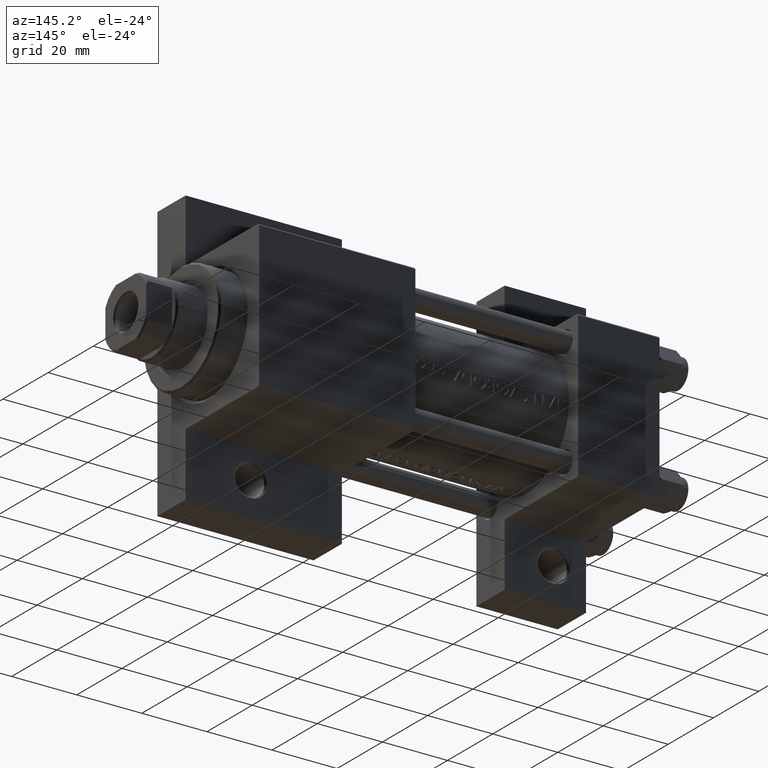
[diagram: clean part render]
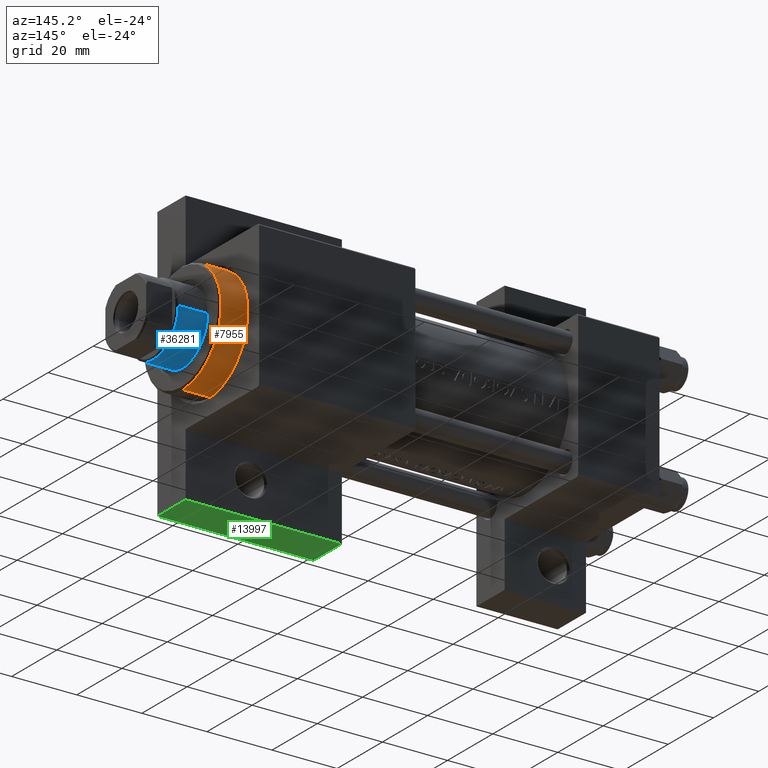
[diagram: same view with three faces highlighted in distinct colors, each labeled with its STEP entity id]
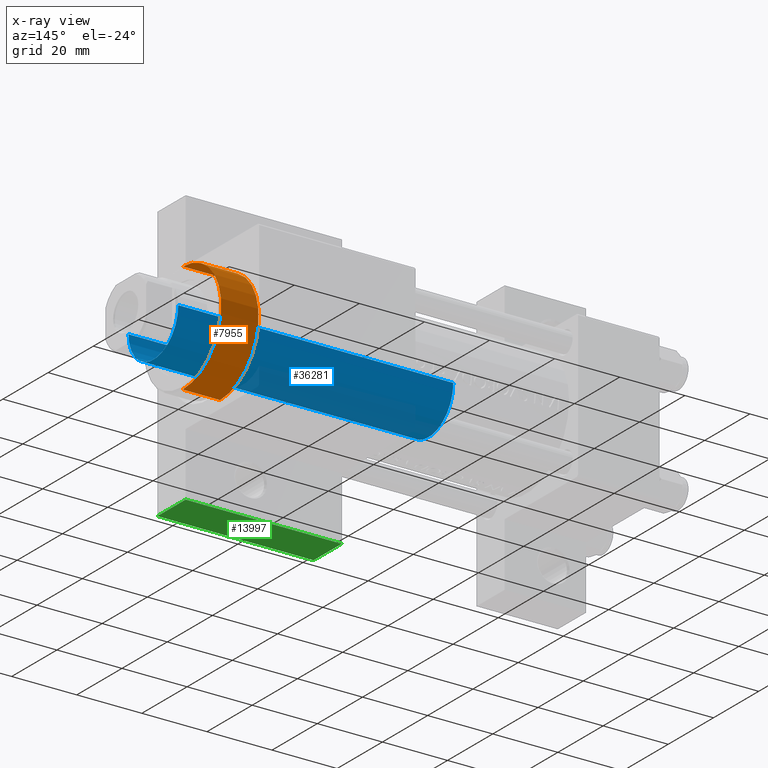
[diagram: x-ray of the same camera — body ghosted, the three highlighted faces saturated]
A machine part, auxiliary view with three faces highlighted in distinct colors.
The next image is the same camera in x-ray (body ghosted, the three faces saturated) — at least one of them is partly hidden behind the body in this view.
Their STEP definitions:

[orange] entity #7955 — the highlighted cylindrical surface (partial cylindrical patch) has radius 17 mm, axis along (-1, -0, 0).
#794 = VECTOR ( 'NONE', #15825, 1000.000000000000000 ) ;
#1245 = ORIENTED_EDGE ( 'NONE', *, *, #9438, .F. ) ;
#1722 = CIRCLE ( 'NONE', #46285, 17.00000000000000000 ) ;
#2302 = VERTEX_POINT ( 'NONE', #45322 ) ;
#2951 = DIRECTION ( 'NONE',  ( 0.000000000000000000, 0.000000000000000000, 1.000000000000000000 ) ) ;
#4401 = ORIENTED_EDGE ( 'NONE', *, *, #6336, .T. ) ;
#4854 = AXIS2_PLACEMENT_3D ( 'NONE', #19481, #41344, #18996 ) ;
#6336 = EDGE_CURVE ( 'NONE', #18333, #29306, #41307, .T. ) ;
#7071 = VECTOR ( 'NONE', #15433, 1000.000000000000000 ) ;
#7829 = VERTEX_POINT ( 'NONE', #43497 ) ;
#7955 = ADVANCED_FACE ( 'NONE', ( #17070 ), #43016, .T. ) ;
#8691 = LINE ( 'NONE', #19998, #7071 ) ;
#9438 = EDGE_CURVE ( 'NONE', #7829, #2302, #8691, .T. ) ;
#13327 = CIRCLE ( 'NONE', #4854, 17.00000000000000000 ) ;
#13552 = CARTESIAN_POINT ( 'NONE',  ( 0.000000000000000000, 0.000000000000000000, 28.69999999999999929 ) ) ;
#15433 = DIRECTION ( 'NONE',  ( -0.000000000000000000, -0.000000000000000000, -1.000000000000000000 ) ) ;
#15825 = DIRECTION ( 'NONE',  ( -0.000000000000000000, -0.000000000000000000, -1.000000000000000000 ) ) ;
#17070 = FACE_OUTER_BOUND ( 'NONE', #40054, .T. ) ;
#17399 = DIRECTION ( 'NONE',  ( 1.000000000000000000, 0.000000000000000000, 0.000000000000000000 ) ) ;
#17530 = DIRECTION ( 'NONE',  ( -0.000000000000000000, -0.000000000000000000, -1.000000000000000000 ) ) ;
#18265 = ORIENTED_EDGE ( 'NONE', *, *, #44317, .T. ) ;
#18333 = VERTEX_POINT ( 'NONE', #44437 ) ;
#18996 = DIRECTION ( 'NONE',  ( 1.000000000000000000, 0.000000000000000000, 0.000000000000000000 ) ) ;
#19481 = CARTESIAN_POINT ( 'NONE',  ( 0.000000000000000000, 0.000000000000000000, 40.19999999999999574 ) ) ;
#19998 = CARTESIAN_POINT ( 'NONE',  ( -17.00000000000000000, 0.000000000000000000, 40.70000000000000284 ) ) ;
#22798 = CARTESIAN_POINT ( 'NONE',  ( 17.00000000000000000, 2.081899558550500280E-15, 40.70000000000000284 ) ) ;
#25468 = DIRECTION ( 'NONE',  ( -1.000000000000000000, 0.000000000000000000, 0.000000000000000000 ) ) ;
#29306 = VERTEX_POINT ( 'NONE', #41816 ) ;
#30258 = EDGE_CURVE ( 'NONE', #7829, #18333, #13327, .T. ) ;
#33560 = ORIENTED_EDGE ( 'NONE', *, *, #30258, .T. ) ;
#40054 = EDGE_LOOP ( 'NONE', ( #33560, #4401, #18265, #1245 ) ) ;
#41307 = LINE ( 'NONE', #22798, #794 ) ;
#41344 = DIRECTION ( 'NONE',  ( 0.000000000000000000, 0.000000000000000000, -1.000000000000000000 ) ) ;
#41816 = CARTESIAN_POINT ( 'NONE',  ( 17.00000000000000000, 2.081899558550500280E-15, 28.69999999999999929 ) ) ;
#43016 = CYLINDRICAL_SURFACE ( 'NONE', #46946, 17.00000000000000000 ) ;
#43497 = CARTESIAN_POINT ( 'NONE',  ( -17.00000000000000000, 0.000000000000000000, 40.19999999999999574 ) ) ;
#44317 = EDGE_CURVE ( 'NONE', #29306, #2302, #1722, .T. ) ;
#44437 = CARTESIAN_POINT ( 'NONE',  ( 17.00000000000000000, 2.081899558550500280E-15, 40.19999999999999574 ) ) ;
#45322 = CARTESIAN_POINT ( 'NONE',  ( -17.00000000000000000, 0.000000000000000000, 28.69999999999999929 ) ) ;
#46285 = AXIS2_PLACEMENT_3D ( 'NONE', #13552, #2951, #17399 ) ;
#46946 = AXIS2_PLACEMENT_3D ( 'NONE', #47342, #17530, #25468 ) ;
#47342 = CARTESIAN_POINT ( 'NONE',  ( 0.000000000000000000, 0.000000000000000000, 40.70000000000000284 ) ) ;

[blue] entity #36281 — the highlighted cylindrical surface (partial cylindrical patch) has radius 11 mm, axis along (-1, 0, 0).
#3693 = LINE ( 'NONE', #40247, #34681 ) ;
#5912 = DIRECTION ( 'NONE',  ( 1.000000000000000000, 0.000000000000000000, 0.000000000000000000 ) ) ;
#6676 = CYLINDRICAL_SURFACE ( 'NONE', #18894, 11.00000000000000000 ) ;
#7388 = ORIENTED_EDGE ( 'NONE', *, *, #25430, .F. ) ;
#8488 = ORIENTED_EDGE ( 'NONE', *, *, #15518, .T. ) ;
#8852 = AXIS2_PLACEMENT_3D ( 'NONE', #23447, #38578, #42429 ) ;
#10273 = CARTESIAN_POINT ( 'NONE',  ( 11.00000000000000000, 1.347111479062088405E-15, 114.5000000000000142 ) ) ;
#10704 = ORIENTED_EDGE ( 'NONE', *, *, #39056, .T. ) ;
#11730 = VERTEX_POINT ( 'NONE', #10273 ) ;
#12708 = VERTEX_POINT ( 'NONE', #40562 ) ;
#15518 = EDGE_CURVE ( 'NONE', #30010, #11730, #32933, .T. ) ;
#18894 = AXIS2_PLACEMENT_3D ( 'NONE', #36013, #24257, #43223 ) ;
#21280 = CARTESIAN_POINT ( 'NONE',  ( 0.000000000000000000, 0.000000000000000000, 114.5000000000000142 ) ) ;
#22141 = CARTESIAN_POINT ( 'NONE',  ( 11.00000000000000000, 1.347111479062088405E-15, 115.0000000000000000 ) ) ;
#22617 = LINE ( 'NONE', #22141, #34200 ) ;
#23447 = CARTESIAN_POINT ( 'NONE',  ( 0.000000000000000000, 0.000000000000000000, 30.00000000000000000 ) ) ;
#24257 = DIRECTION ( 'NONE',  ( -0.000000000000000000, -0.000000000000000000, -1.000000000000000000 ) ) ;
#25430 = EDGE_CURVE ( 'NONE', #30010, #26111, #3693, .T. ) ;
#25813 = DIRECTION ( 'NONE',  ( -0.000000000000000000, -0.000000000000000000, -1.000000000000000000 ) ) ;
#26111 = VERTEX_POINT ( 'NONE', #45440 ) ;
#28099 = FACE_OUTER_BOUND ( 'NONE', #44616, .T. ) ;
#30010 = VERTEX_POINT ( 'NONE', #41704 ) ;
#32933 = CIRCLE ( 'NONE', #33725, 11.00000000000000000 ) ;
#33725 = AXIS2_PLACEMENT_3D ( 'NONE', #21280, #46756, #5912 ) ;
#34200 = VECTOR ( 'NONE', #47384, 1000.000000000000000 ) ;
#34681 = VECTOR ( 'NONE', #25813, 1000.000000000000000 ) ;
#36013 = CARTESIAN_POINT ( 'NONE',  ( 0.000000000000000000, 0.000000000000000000, 115.0000000000000000 ) ) ;
#36281 = ADVANCED_FACE ( 'NONE', ( #28099 ), #6676, .T. ) ;
#38291 = ORIENTED_EDGE ( 'NONE', *, *, #38963, .T. ) ;
#38578 = DIRECTION ( 'NONE',  ( 0.000000000000000000, 0.000000000000000000, 1.000000000000000000 ) ) ;
#38963 = EDGE_CURVE ( 'NONE', #12708, #26111, #42669, .T. ) ;
#39056 = EDGE_CURVE ( 'NONE', #11730, #12708, #22617, .T. ) ;
#40247 = CARTESIAN_POINT ( 'NONE',  ( -11.00000000000000000, 0.000000000000000000, 115.0000000000000000 ) ) ;
#40562 = CARTESIAN_POINT ( 'NONE',  ( 11.00000000000000000, 1.347111479062088405E-15, 30.00000000000000000 ) ) ;
#41704 = CARTESIAN_POINT ( 'NONE',  ( -11.00000000000000000, 0.000000000000000000, 114.5000000000000142 ) ) ;
#42429 = DIRECTION ( 'NONE',  ( 1.000000000000000000, 0.000000000000000000, 0.000000000000000000 ) ) ;
#42669 = CIRCLE ( 'NONE', #8852, 11.00000000000000000 ) ;
#43223 = DIRECTION ( 'NONE',  ( -1.000000000000000000, 0.000000000000000000, 0.000000000000000000 ) ) ;
#44616 = EDGE_LOOP ( 'NONE', ( #8488, #10704, #38291, #7388 ) ) ;
#45440 = CARTESIAN_POINT ( 'NONE',  ( -11.00000000000000000, 0.000000000000000000, 30.00000000000000000 ) ) ;
#46756 = DIRECTION ( 'NONE',  ( 0.000000000000000000, 0.000000000000000000, -1.000000000000000000 ) ) ;
#47384 = DIRECTION ( 'NONE',  ( -0.000000000000000000, -0.000000000000000000, -1.000000000000000000 ) ) ;

[green] entity #13997 — the highlighted planar face has unit normal (0, 0, -1).
#1195 = DIRECTION ( 'NONE',  ( 1.000000000000000000, -2.891205793294679312E-16, 0.000000000000000000 ) ) ;
#1631 = CARTESIAN_POINT ( 'NONE',  ( 123.0000000000000000, 41.99999999999999289, -9.999999999999998224 ) ) ;
#2232 = DIRECTION ( 'NONE',  ( -1.000000000000000000, 2.891205793294679312E-16, 0.000000000000000000 ) ) ;
#2775 = CARTESIAN_POINT ( 'NONE',  ( 123.0000000000000000, 41.99999999999999289, -9.999999999999998224 ) ) ;
#5494 = VERTEX_POINT ( 'NONE', #15330 ) ;
#7799 = EDGE_CURVE ( 'NONE', #34282, #14355, #12753, .T. ) ;
#9463 = FACE_OUTER_BOUND ( 'NONE', #20113, .T. ) ;
#9984 = DIRECTION ( 'NONE',  ( 0.000000000000000000, 0.000000000000000000, -1.000000000000000000 ) ) ;
#10165 = EDGE_CURVE ( 'NONE', #5494, #29373, #25372, .T. ) ;
#10184 = EDGE_CURVE ( 'NONE', #29373, #14355, #14080, .T. ) ;
#12026 = ORIENTED_EDGE ( 'NONE', *, *, #10165, .T. ) ;
#12753 = LINE ( 'NONE', #45919, #40065 ) ;
#12910 = ORIENTED_EDGE ( 'NONE', *, *, #24921, .F. ) ;
#13997 = ADVANCED_FACE ( 'NONE', ( #9463 ), #24136, .T. ) ;
#14080 = LINE ( 'NONE', #2775, #21702 ) ;
#14355 = VERTEX_POINT ( 'NONE', #38747 ) ;
#15330 = CARTESIAN_POINT ( 'NONE',  ( 75.00000000000001421, 42.00000000000000711, -9.999999999999998224 ) ) ;
#19075 = AXIS2_PLACEMENT_3D ( 'NONE', #24600, #39028, #2232 ) ;
#20113 = EDGE_LOOP ( 'NONE', ( #27142, #12910, #12026, #27419 ) ) ;
#21702 = VECTOR ( 'NONE', #9984, 1000.000000000000000 ) ;
#24136 = PLANE ( 'NONE',  #19075 ) ;
#24600 = CARTESIAN_POINT ( 'NONE',  ( 75.00000000000001421, 42.00000000000000711, -9.999999999999998224 ) ) ;
#24921 = EDGE_CURVE ( 'NONE', #5494, #34282, #39237, .T. ) ;
#25372 = LINE ( 'NONE', #29216, #40886 ) ;
#27142 = ORIENTED_EDGE ( 'NONE', *, *, #7799, .F. ) ;
#27419 = ORIENTED_EDGE ( 'NONE', *, *, #10184, .T. ) ;
#28267 = DIRECTION ( 'NONE',  ( 1.000000000000000000, -2.891205793294679312E-16, 0.000000000000000000 ) ) ;
#29216 = CARTESIAN_POINT ( 'NONE',  ( 75.00000000000001421, 42.00000000000000711, -9.999999999999998224 ) ) ;
#29373 = VERTEX_POINT ( 'NONE', #1631 ) ;
#33819 = CARTESIAN_POINT ( 'NONE',  ( 75.00000000000001421, 42.00000000000000711, -22.50000000000000000 ) ) ;
#34282 = VERTEX_POINT ( 'NONE', #33819 ) ;
#35631 = CARTESIAN_POINT ( 'NONE',  ( 75.00000000000001421, 42.00000000000000711, -9.999999999999998224 ) ) ;
#38747 = CARTESIAN_POINT ( 'NONE',  ( 123.0000000000000000, 41.99999999999999289, -22.50000000000000000 ) ) ;
#39028 = DIRECTION ( 'NONE',  ( 2.891205793294679312E-16, 1.000000000000000000, 0.000000000000000000 ) ) ;
#39237 = LINE ( 'NONE', #35631, #46134 ) ;
#40065 = VECTOR ( 'NONE', #1195, 1000.000000000000000 ) ;
#40886 = VECTOR ( 'NONE', #28267, 1000.000000000000000 ) ;
#43069 = DIRECTION ( 'NONE',  ( 0.000000000000000000, 0.000000000000000000, -1.000000000000000000 ) ) ;
#45919 = CARTESIAN_POINT ( 'NONE',  ( 75.00000000000001421, 42.00000000000000711, -22.50000000000000000 ) ) ;
#46134 = VECTOR ( 'NONE', #43069, 1000.000000000000000 ) ;